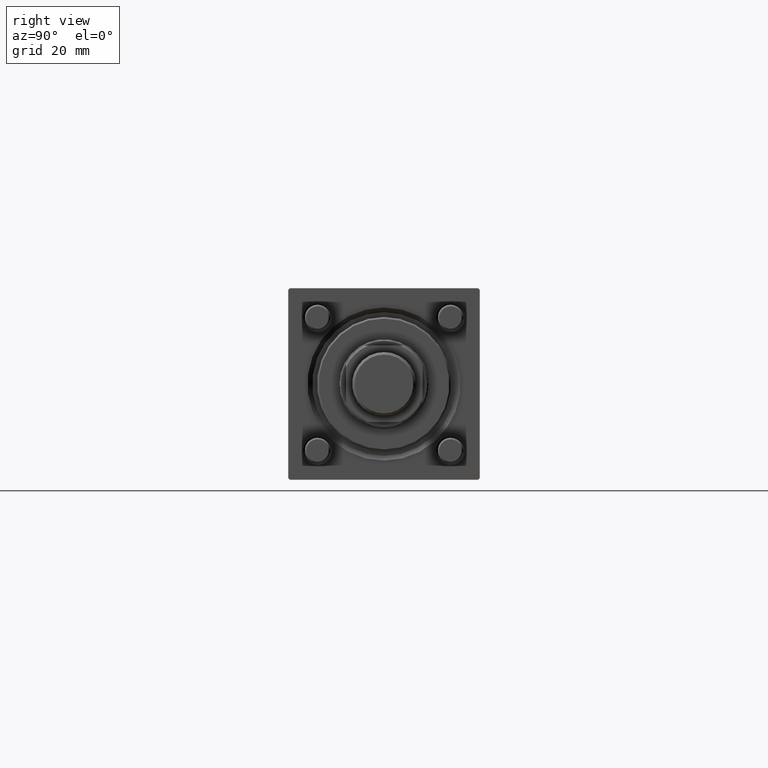
[diagram: clean part render]
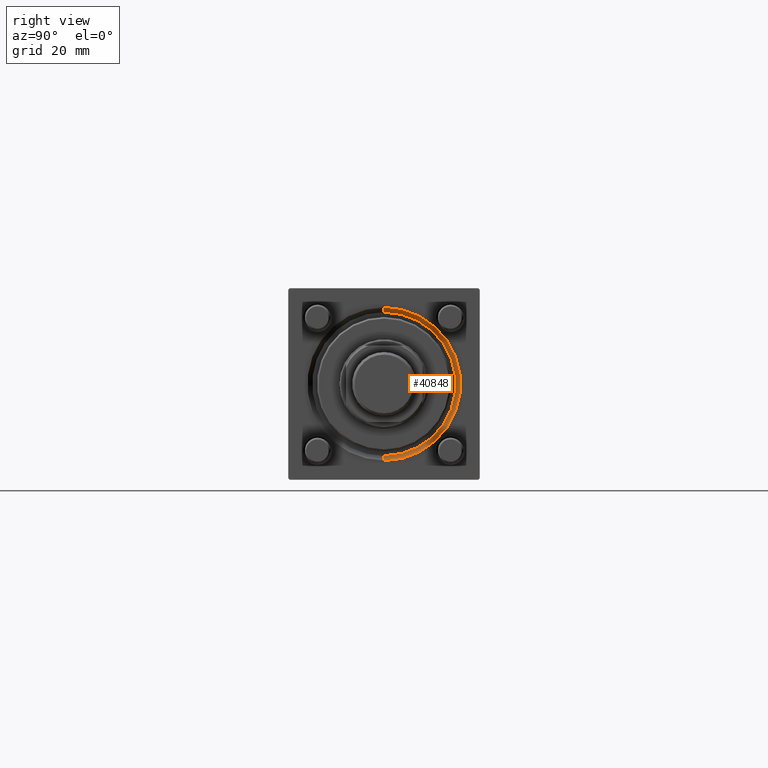
[diagram: same view with one face highlighted and labeled with its STEP entity id]
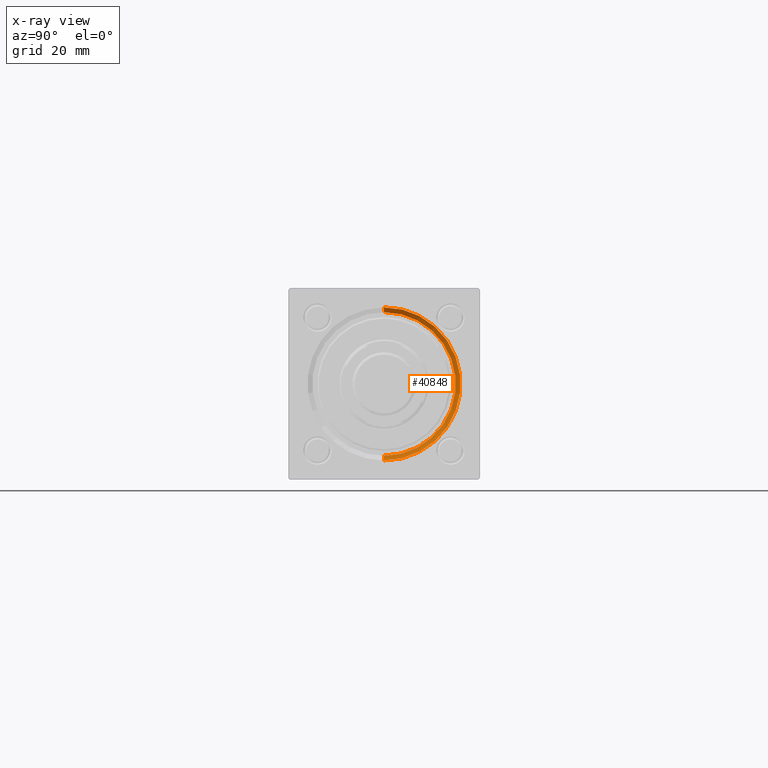
[diagram: x-ray of the same camera — body ghosted, the highlighted face saturated]
A machine part, right view. The second image highlights one B-rep face of the part: STEP entity #40848.
The next image is the same camera in x-ray: the body ghosted, the highlighted face saturated — about 0% of this face is hidden behind the body in this view.
In plain terms, the highlighted conical surface has half-angle 45 deg.
Its self-contained STEP definition (entity closure, byte-faithful):
#995 = VECTOR ( 'NONE', #43720, 1000.000000000000000 ) ;
#2534 = CARTESIAN_POINT ( 'NONE',  ( 146.4999999999999432, 0.000000000000000000, 0.000000000000000000 ) ) ;
#3834 = EDGE_CURVE ( 'NONE', #56151, #27507, #38014, .T. ) ;
#6138 = DIRECTION ( 'NONE',  ( 0.000000000000000000, 0.000000000000000000, -1.000000000000000000 ) ) ;
#8121 = CARTESIAN_POINT ( 'NONE',  ( 146.4999999999999432, 2.755455298081545172E-15, 22.50000000000000355 ) ) ;
#8383 = LINE ( 'NONE', #56201, #995 ) ;
#8402 = VERTEX_POINT ( 'NONE', #30473 ) ;
#10494 = FACE_OUTER_BOUND ( 'NONE', #51126, .T. ) ;
#11524 = DIRECTION ( 'NONE',  ( 1.000000000000000000, 0.000000000000000000, 0.000000000000000000 ) ) ;
#20148 = ORIENTED_EDGE ( 'NONE', *, *, #53168, .F. ) ;
#21105 = AXIS2_PLACEMENT_3D ( 'NONE', #28153, #45817, #6138 ) ;
#23971 = EDGE_CURVE ( 'NONE', #25001, #56151, #33406, .T. ) ;
#25001 = VERTEX_POINT ( 'NONE', #8121 ) ;
#25205 = CARTESIAN_POINT ( 'NONE',  ( 148.0000000000000000, 2.939152317953652628E-15, 24.00000000000003908 ) ) ;
#26630 = CONICAL_SURFACE ( 'NONE', #21105, 22.50000000000000355, 0.7853981633974415066 ) ;
#27507 = VERTEX_POINT ( 'NONE', #48982 ) ;
#28153 = CARTESIAN_POINT ( 'NONE',  ( 146.4999999999999432, 0.000000000000000000, 0.000000000000000000 ) ) ;
#28983 = DIRECTION ( 'NONE',  ( -1.000000000000000000, 0.000000000000000000, -0.000000000000000000 ) ) ;
#30473 = CARTESIAN_POINT ( 'NONE',  ( 146.4999999999999432, 0.000000000000000000, -22.50000000000000355 ) ) ;
#30523 = AXIS2_PLACEMENT_3D ( 'NONE', #2534, #11524, #37312 ) ;
#30912 = VECTOR ( 'NONE', #55719, 1000.000000000000000 ) ;
#33406 = LINE ( 'NONE', #47298, #30912 ) ;
#37312 = DIRECTION ( 'NONE',  ( 0.000000000000000000, 0.000000000000000000, 1.000000000000000000 ) ) ;
#38014 = CIRCLE ( 'NONE', #45347, 24.00000000000003908 ) ;
#38827 = CARTESIAN_POINT ( 'NONE',  ( 148.0000000000000000, 0.000000000000000000, 0.000000000000000000 ) ) ;
#40848 = ADVANCED_FACE ( 'NONE', ( #10494 ), #26630, .F. ) ;
#42564 = CIRCLE ( 'NONE', #30523, 22.50000000000000355 ) ;
#43720 = DIRECTION ( 'NONE',  ( 0.7071067811865524577, 0.000000000000000000, -0.7071067811865426878 ) ) ;
#45347 = AXIS2_PLACEMENT_3D ( 'NONE', #38827, #28983, #56495 ) ;
#45692 = ORIENTED_EDGE ( 'NONE', *, *, #23971, .F. ) ;
#45817 = DIRECTION ( 'NONE',  ( 1.000000000000000000, 0.000000000000000000, 0.000000000000000000 ) ) ;
#47298 = CARTESIAN_POINT ( 'NONE',  ( 146.4999999999999432, 2.755455298081545172E-15, 22.50000000000000355 ) ) ;
#48574 = ORIENTED_EDGE ( 'NONE', *, *, #3834, .F. ) ;
#48982 = CARTESIAN_POINT ( 'NONE',  ( 148.0000000000000000, 0.000000000000000000, -24.00000000000003908 ) ) ;
#51126 = EDGE_LOOP ( 'NONE', ( #45692, #20148, #55257, #48574 ) ) ;
#53168 = EDGE_CURVE ( 'NONE', #8402, #25001, #42564, .T. ) ;
#55257 = ORIENTED_EDGE ( 'NONE', *, *, #55445, .T. ) ;
#55445 = EDGE_CURVE ( 'NONE', #8402, #27507, #8383, .T. ) ;
#55719 = DIRECTION ( 'NONE',  ( 0.7071067811865524577, 8.659560562354874926E-17, 0.7071067811865426878 ) ) ;
#56151 = VERTEX_POINT ( 'NONE', #25205 ) ;
#56201 = CARTESIAN_POINT ( 'NONE',  ( 146.4999999999999432, 0.000000000000000000, -22.50000000000000355 ) ) ;
#56495 = DIRECTION ( 'NONE',  ( 0.000000000000000000, 0.000000000000000000, 1.000000000000000000 ) ) ;